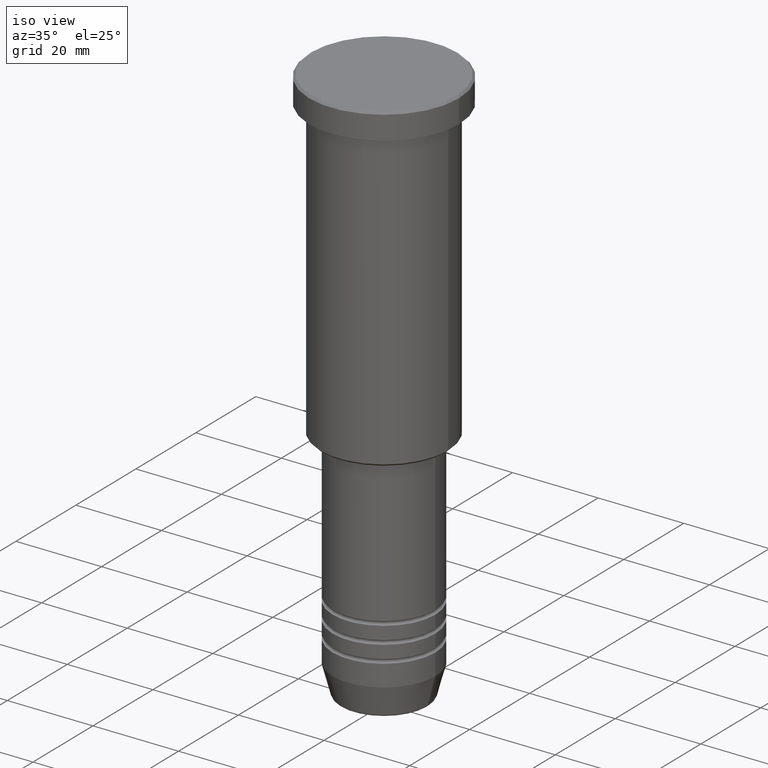
[diagram: clean part render]
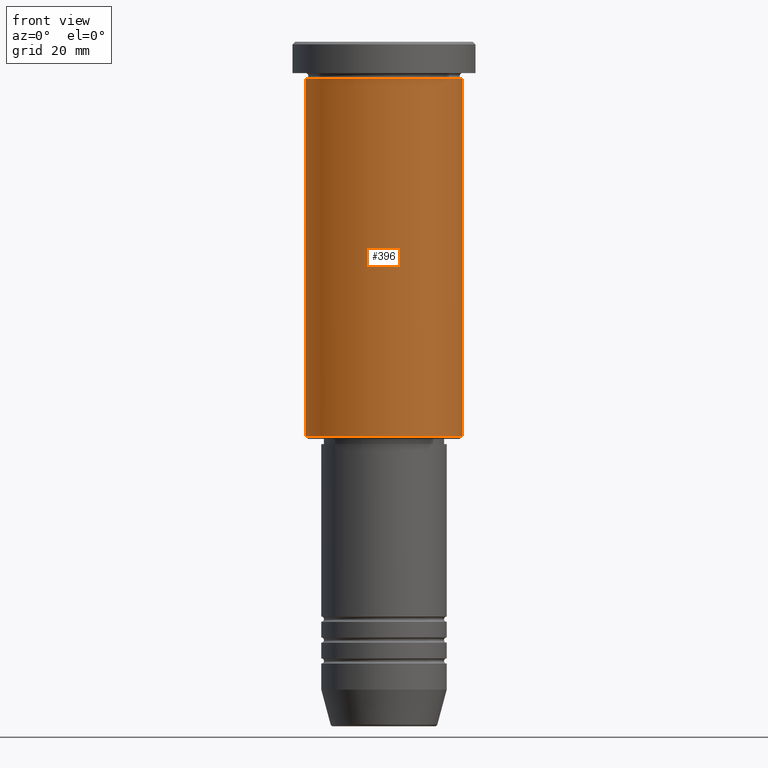
[diagram: tour spotlight — one face highlighted and labeled with its STEP entity id]
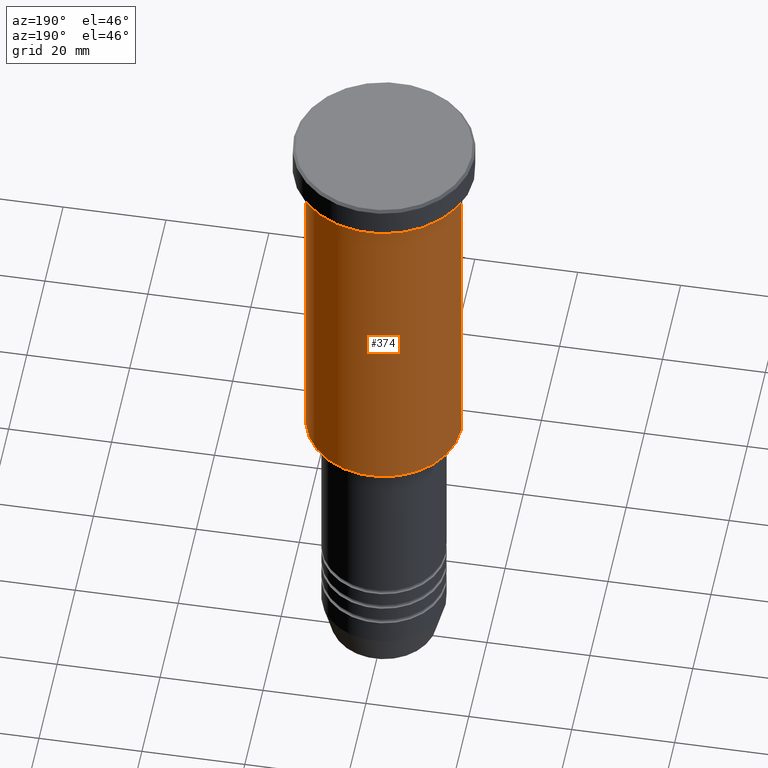
[diagram: tour spotlight — one face highlighted and labeled with its STEP entity id]
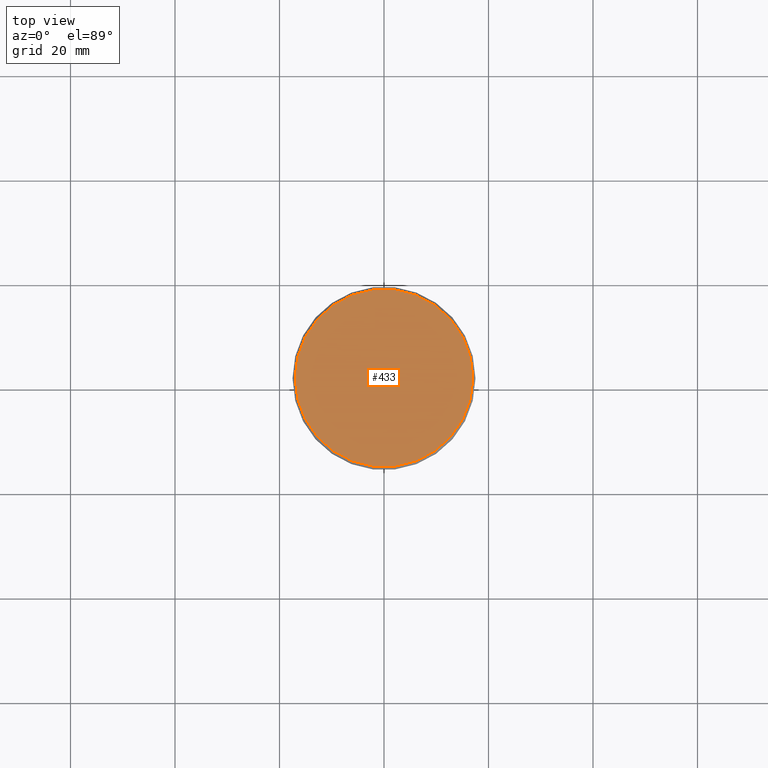
[diagram: tour spotlight — one face highlighted and labeled with its STEP entity id]
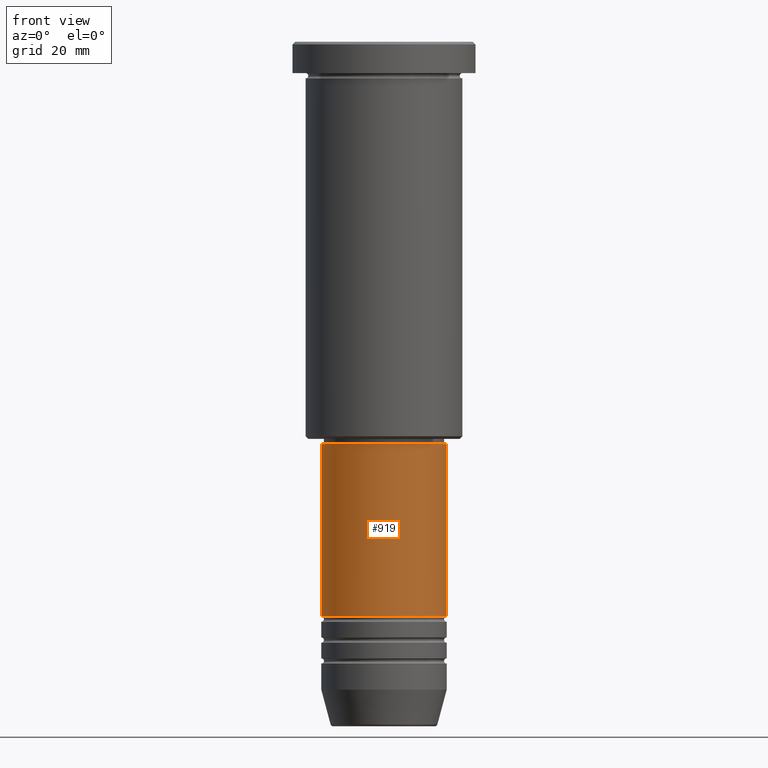
[diagram: tour spotlight — one face highlighted and labeled with its STEP entity id]
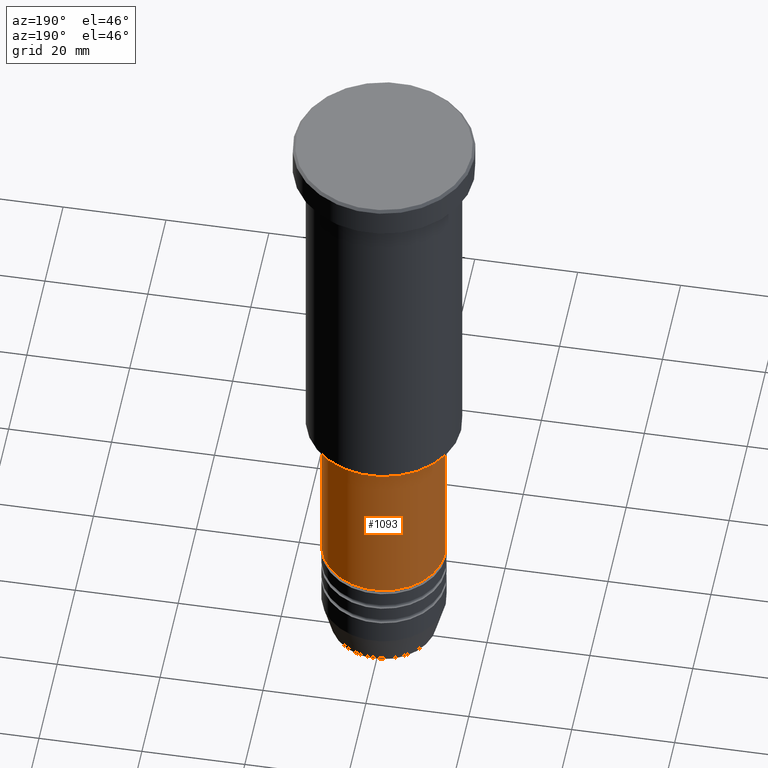
[diagram: tour spotlight — one face highlighted and labeled with its STEP entity id]
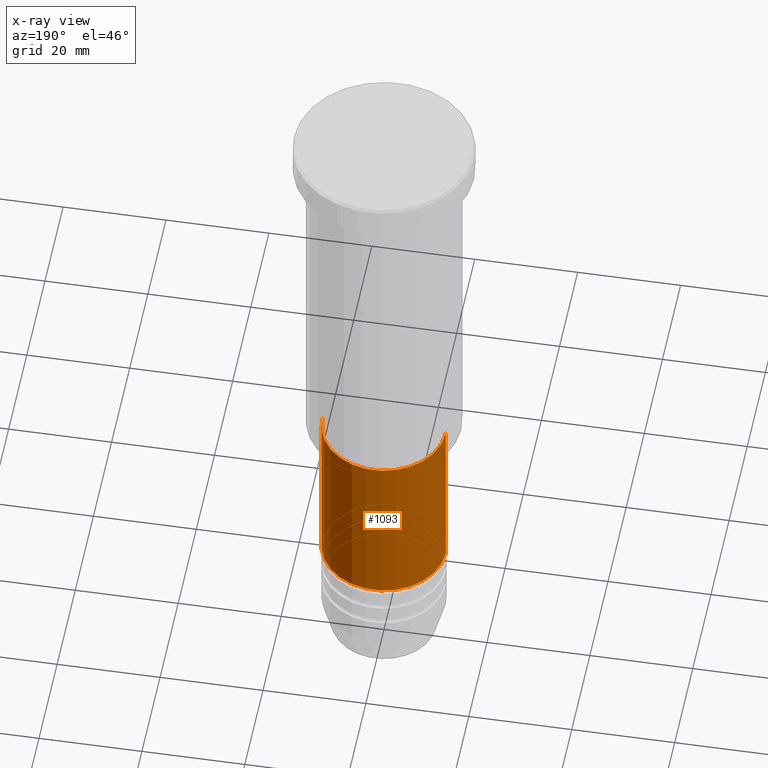
[diagram: x-ray of the same camera — body ghosted, this tour face saturated]
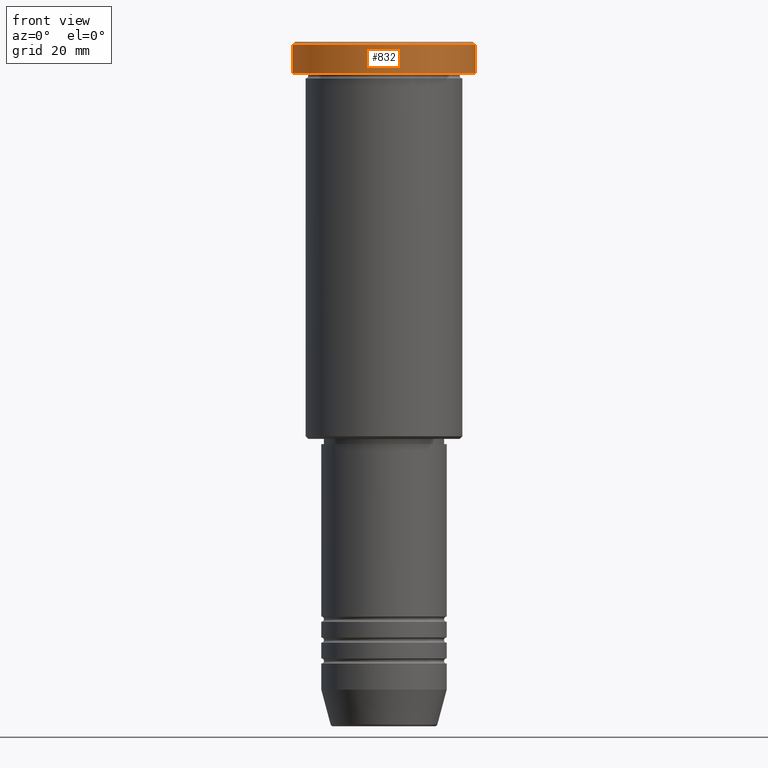
[diagram: tour spotlight — one face highlighted and labeled with its STEP entity id]
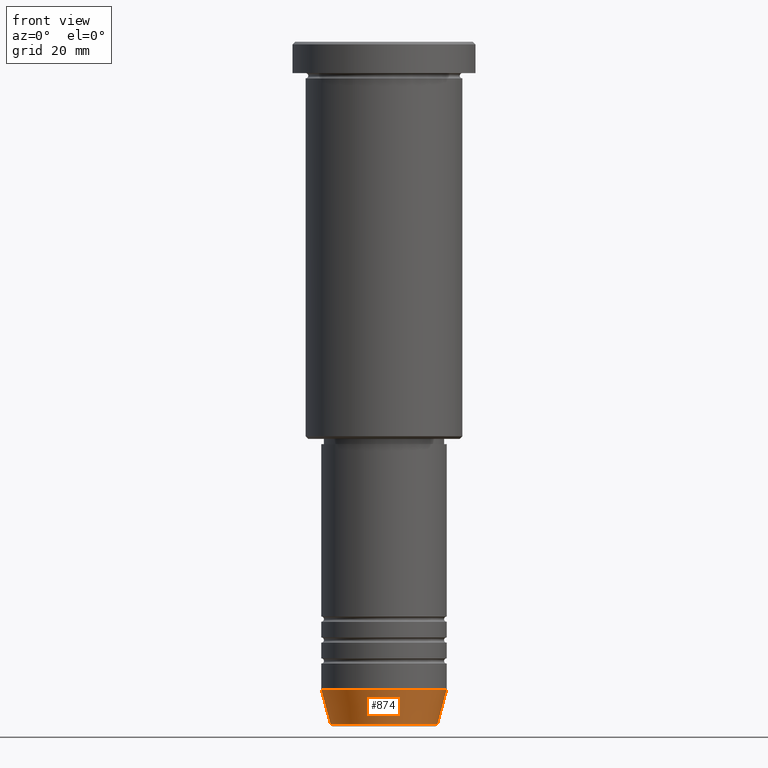
[diagram: tour spotlight — one face highlighted and labeled with its STEP entity id]
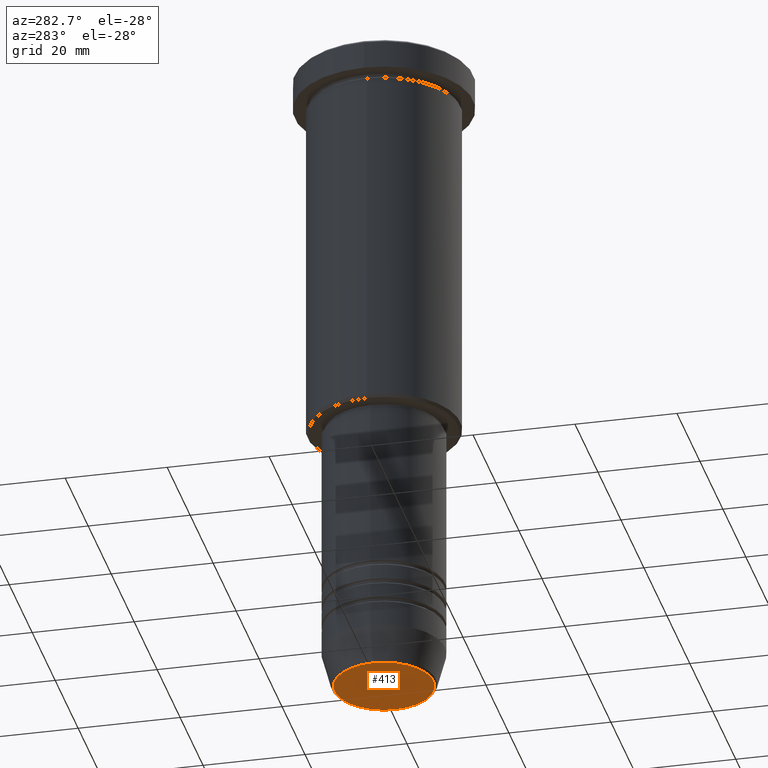
[diagram: tour spotlight — one face highlighted and labeled with its STEP entity id]
A machine part: a face-by-face anatomy tour. The part has 43 B-rep faces; the first image is the clean iso view, then the 8 largest visible faces are spotlighted one at a time (largest first), each with its STEP entity span.

Face 1 — front view, entity #396. In plain terms, the highlighted cylindrical surface (partial cylindrical patch) has radius 15 mm, axis along (-0, -0, 1).
Definition (entity closure, byte-faithful):
#12 = CIRCLE ( 'NONE', #695, 15.00000000000000000 ) ;
#19 = CARTESIAN_POINT ( 'NONE',  ( -15.00000000000000000, 1.836970198721029589E-15, 0.000000000000000000 ) ) ;
#22 = ORIENTED_EDGE ( 'NONE', *, *, #215, .F. ) ;
#30 = LINE ( 'NONE', #63, #548 ) ;
#40 = DIRECTION ( 'NONE',  ( -0.000000000000000000, -0.000000000000000000, 1.000000000000000000 ) ) ;
#63 = CARTESIAN_POINT ( 'NONE',  ( 15.00000000000000000, 0.000000000000000000, 0.000000000000000000 ) ) ;
#80 = FACE_OUTER_BOUND ( 'NONE', #312, .T. ) ;
#109 = LINE ( 'NONE', #19, #1129 ) ;
#174 = VERTEX_POINT ( 'NONE', #352 ) ;
#200 = VERTEX_POINT ( 'NONE', #1108 ) ;
#215 = EDGE_CURVE ( 'NONE', #200, #174, #109, .T. ) ;
#271 = CIRCLE ( 'NONE', #572, 15.00000000000000000 ) ;
#298 = DIRECTION ( 'NONE',  ( 1.000000000000000000, 0.000000000000000000, 0.000000000000000000 ) ) ;
#312 = EDGE_LOOP ( 'NONE', ( #22, #815, #1066, #1137 ) ) ;
#352 = CARTESIAN_POINT ( 'NONE',  ( -15.00000000000000000, 1.836970198721029589E-15, -6.999999999999995559 ) ) ;
#362 = VERTEX_POINT ( 'NONE', #558 ) ;
#375 = CYLINDRICAL_SURFACE ( 'NONE', #642, 15.00000000000000000 ) ;
#396 = ADVANCED_FACE ( 'NONE', ( #80 ), #375, .T. ) ;
#437 = CARTESIAN_POINT ( 'NONE',  ( 0.000000000000000000, 0.000000000000000000, -6.999999999999995559 ) ) ;
#439 = DIRECTION ( 'NONE',  ( -0.000000000000000000, -0.000000000000000000, 1.000000000000000000 ) ) ;
#480 = DIRECTION ( 'NONE',  ( -0.000000000000000000, -0.000000000000000000, 1.000000000000000000 ) ) ;
#505 = CARTESIAN_POINT ( 'NONE',  ( 0.000000000000000000, 0.000000000000000000, -75.49999999999998579 ) ) ;
#548 = VECTOR ( 'NONE', #439, 1000.000000000000000 ) ;
#558 = CARTESIAN_POINT ( 'NONE',  ( 15.00000000000000000, 0.000000000000000000, -6.999999999999995559 ) ) ;
#572 = AXIS2_PLACEMENT_3D ( 'NONE', #505, #40, #1035 ) ;
#642 = AXIS2_PLACEMENT_3D ( 'NONE', #1029, #747, #298 ) ;
#695 = AXIS2_PLACEMENT_3D ( 'NONE', #437, #1152, #708 ) ;
#705 = EDGE_CURVE ( 'NONE', #174, #362, #12, .T. ) ;
#708 = DIRECTION ( 'NONE',  ( 1.000000000000000000, 0.000000000000000000, 0.000000000000000000 ) ) ;
#747 = DIRECTION ( 'NONE',  ( -0.000000000000000000, -0.000000000000000000, 1.000000000000000000 ) ) ;
#815 = ORIENTED_EDGE ( 'NONE', *, *, #936, .T. ) ;
#878 = VERTEX_POINT ( 'NONE', #905 ) ;
#905 = CARTESIAN_POINT ( 'NONE',  ( 15.00000000000000000, 0.000000000000000000, -75.49999999999998579 ) ) ;
#936 = EDGE_CURVE ( 'NONE', #200, #878, #271, .T. ) ;
#1029 = CARTESIAN_POINT ( 'NONE',  ( 0.000000000000000000, 0.000000000000000000, 0.000000000000000000 ) ) ;
#1035 = DIRECTION ( 'NONE',  ( -1.000000000000000000, 0.000000000000000000, 0.000000000000000000 ) ) ;
#1066 = ORIENTED_EDGE ( 'NONE', *, *, #1110, .T. ) ;
#1108 = CARTESIAN_POINT ( 'NONE',  ( -15.00000000000000000, 1.836970198721029589E-15, -75.49999999999998579 ) ) ;
#1110 = EDGE_CURVE ( 'NONE', #878, #362, #30, .T. ) ;
#1129 = VECTOR ( 'NONE', #480, 1000.000000000000000 ) ;
#1137 = ORIENTED_EDGE ( 'NONE', *, *, #705, .F. ) ;
#1152 = DIRECTION ( 'NONE',  ( -0.000000000000000000, -0.000000000000000000, 1.000000000000000000 ) ) ;

Face 2 — auxiliary view, entity #374. In plain terms, the highlighted cylindrical surface (partial cylindrical patch) has radius 15 mm, axis along (-0, -0, 1).
Definition (entity closure, byte-faithful):
#19 = CARTESIAN_POINT ( 'NONE',  ( -15.00000000000000000, 1.836970198721029589E-15, 0.000000000000000000 ) ) ;
#30 = LINE ( 'NONE', #63, #548 ) ;
#63 = CARTESIAN_POINT ( 'NONE',  ( 15.00000000000000000, 0.000000000000000000, 0.000000000000000000 ) ) ;
#109 = LINE ( 'NONE', #19, #1129 ) ;
#144 = ORIENTED_EDGE ( 'NONE', *, *, #689, .T. ) ;
#174 = VERTEX_POINT ( 'NONE', #352 ) ;
#200 = VERTEX_POINT ( 'NONE', #1108 ) ;
#215 = EDGE_CURVE ( 'NONE', #200, #174, #109, .T. ) ;
#255 = DIRECTION ( 'NONE',  ( 1.000000000000000000, 0.000000000000000000, 0.000000000000000000 ) ) ;
#352 = CARTESIAN_POINT ( 'NONE',  ( -15.00000000000000000, 1.836970198721029589E-15, -6.999999999999995559 ) ) ;
#362 = VERTEX_POINT ( 'NONE', #558 ) ;
#366 = ORIENTED_EDGE ( 'NONE', *, *, #215, .T. ) ;
#374 = ADVANCED_FACE ( 'NONE', ( #719 ), #552, .T. ) ;
#426 = DIRECTION ( 'NONE',  ( -0.000000000000000000, -0.000000000000000000, 1.000000000000000000 ) ) ;
#432 = DIRECTION ( 'NONE',  ( -1.000000000000000000, 0.000000000000000000, 0.000000000000000000 ) ) ;
#439 = DIRECTION ( 'NONE',  ( -0.000000000000000000, -0.000000000000000000, 1.000000000000000000 ) ) ;
#480 = DIRECTION ( 'NONE',  ( -0.000000000000000000, -0.000000000000000000, 1.000000000000000000 ) ) ;
#495 = CIRCLE ( 'NONE', #930, 15.00000000000000000 ) ;
#530 = DIRECTION ( 'NONE',  ( -0.000000000000000000, -0.000000000000000000, 1.000000000000000000 ) ) ;
#548 = VECTOR ( 'NONE', #439, 1000.000000000000000 ) ;
#552 = CYLINDRICAL_SURFACE ( 'NONE', #767, 15.00000000000000000 ) ;
#558 = CARTESIAN_POINT ( 'NONE',  ( 15.00000000000000000, 0.000000000000000000, -6.999999999999995559 ) ) ;
#563 = DIRECTION ( 'NONE',  ( -0.000000000000000000, -0.000000000000000000, 1.000000000000000000 ) ) ;
#602 = CIRCLE ( 'NONE', #737, 15.00000000000000000 ) ;
#636 = CARTESIAN_POINT ( 'NONE',  ( 0.000000000000000000, 0.000000000000000000, 0.000000000000000000 ) ) ;
#689 = EDGE_CURVE ( 'NONE', #878, #200, #495, .T. ) ;
#709 = ORIENTED_EDGE ( 'NONE', *, *, #1110, .F. ) ;
#719 = FACE_OUTER_BOUND ( 'NONE', #828, .T. ) ;
#737 = AXIS2_PLACEMENT_3D ( 'NONE', #1100, #563, #887 ) ;
#767 = AXIS2_PLACEMENT_3D ( 'NONE', #636, #530, #255 ) ;
#803 = CARTESIAN_POINT ( 'NONE',  ( 0.000000000000000000, 0.000000000000000000, -75.49999999999998579 ) ) ;
#808 = EDGE_CURVE ( 'NONE', #362, #174, #602, .T. ) ;
#828 = EDGE_LOOP ( 'NONE', ( #144, #366, #1064, #709 ) ) ;
#878 = VERTEX_POINT ( 'NONE', #905 ) ;
#887 = DIRECTION ( 'NONE',  ( 1.000000000000000000, 0.000000000000000000, 0.000000000000000000 ) ) ;
#905 = CARTESIAN_POINT ( 'NONE',  ( 15.00000000000000000, 0.000000000000000000, -75.49999999999998579 ) ) ;
#930 = AXIS2_PLACEMENT_3D ( 'NONE', #803, #426, #432 ) ;
#1064 = ORIENTED_EDGE ( 'NONE', *, *, #808, .F. ) ;
#1100 = CARTESIAN_POINT ( 'NONE',  ( 0.000000000000000000, 0.000000000000000000, -6.999999999999995559 ) ) ;
#1108 = CARTESIAN_POINT ( 'NONE',  ( -15.00000000000000000, 1.836970198721029589E-15, -75.49999999999998579 ) ) ;
#1110 = EDGE_CURVE ( 'NONE', #878, #362, #30, .T. ) ;
#1129 = VECTOR ( 'NONE', #480, 1000.000000000000000 ) ;

Face 3 — top view, entity #433. In plain terms, the highlighted planar face has unit normal (0, -0, 1).
Definition (entity closure, byte-faithful):
#45 = AXIS2_PLACEMENT_3D ( 'NONE', #394, #589, #302 ) ;
#68 = VERTEX_POINT ( 'NONE', #560 ) ;
#74 = CARTESIAN_POINT ( 'NONE',  ( 0.000000000000000000, 0.000000000000000000, 0.000000000000000000 ) ) ;
#100 = PLANE ( 'NONE',  #45 ) ;
#110 = CIRCLE ( 'NONE', #584, 17.00000000000001421 ) ;
#201 = FACE_OUTER_BOUND ( 'NONE', #349, .T. ) ;
#214 = DIRECTION ( 'NONE',  ( 1.000000000000000000, 0.000000000000000000, 0.000000000000000000 ) ) ;
#240 = DIRECTION ( 'NONE',  ( 1.000000000000000000, 0.000000000000000000, 0.000000000000000000 ) ) ;
#302 = DIRECTION ( 'NONE',  ( 1.000000000000000000, 0.000000000000000000, 0.000000000000000000 ) ) ;
#327 = DIRECTION ( 'NONE',  ( -0.000000000000000000, -0.000000000000000000, 1.000000000000000000 ) ) ;
#349 = EDGE_LOOP ( 'NONE', ( #1097, #608 ) ) ;
#367 = DIRECTION ( 'NONE',  ( -0.000000000000000000, -0.000000000000000000, 1.000000000000000000 ) ) ;
#394 = CARTESIAN_POINT ( 'NONE',  ( 0.000000000000000000, 0.000000000000000000, 0.000000000000000000 ) ) ;
#425 = EDGE_CURVE ( 'NONE', #850, #68, #110, .T. ) ;
#433 = ADVANCED_FACE ( 'NONE', ( #201 ), #100, .T. ) ;
#452 = CARTESIAN_POINT ( 'NONE',  ( 17.00000000000001421, 2.112515728529185250E-15, 0.000000000000000000 ) ) ;
#560 = CARTESIAN_POINT ( 'NONE',  ( -17.00000000000001421, 0.000000000000000000, 0.000000000000000000 ) ) ;
#575 = CARTESIAN_POINT ( 'NONE',  ( 0.000000000000000000, 0.000000000000000000, 0.000000000000000000 ) ) ;
#584 = AXIS2_PLACEMENT_3D ( 'NONE', #575, #367, #214 ) ;
#589 = DIRECTION ( 'NONE',  ( 0.000000000000000000, -0.000000000000000000, 1.000000000000000000 ) ) ;
#596 = EDGE_CURVE ( 'NONE', #68, #850, #1022, .T. ) ;
#608 = ORIENTED_EDGE ( 'NONE', *, *, #425, .T. ) ;
#850 = VERTEX_POINT ( 'NONE', #452 ) ;
#914 = AXIS2_PLACEMENT_3D ( 'NONE', #74, #327, #240 ) ;
#1022 = CIRCLE ( 'NONE', #914, 17.00000000000001421 ) ;
#1097 = ORIENTED_EDGE ( 'NONE', *, *, #596, .T. ) ;

Face 4 — front view, entity #919. In plain terms, the highlighted cylindrical surface (partial cylindrical patch) has radius 12 mm, axis along (-0, -0, 1).
Definition (entity closure, byte-faithful):
#42 = CARTESIAN_POINT ( 'NONE',  ( 12.00000000000000000, 0.000000000000000000, -76.99999999999998579 ) ) ;
#69 = AXIS2_PLACEMENT_3D ( 'NONE', #750, #1015, #470 ) ;
#112 = VECTOR ( 'NONE', #392, 1000.000000000000000 ) ;
#134 = DIRECTION ( 'NONE',  ( 1.000000000000000000, 0.000000000000000000, 0.000000000000000000 ) ) ;
#166 = ORIENTED_EDGE ( 'NONE', *, *, #843, .F. ) ;
#168 = VECTOR ( 'NONE', #370, 1000.000000000000000 ) ;
#179 = ORIENTED_EDGE ( 'NONE', *, *, #762, .F. ) ;
#184 = FACE_OUTER_BOUND ( 'NONE', #635, .T. ) ;
#203 = LINE ( 'NONE', #581, #112 ) ;
#249 = VERTEX_POINT ( 'NONE', #938 ) ;
#259 = ORIENTED_EDGE ( 'NONE', *, *, #353, .T. ) ;
#287 = VERTEX_POINT ( 'NONE', #1119 ) ;
#303 = AXIS2_PLACEMENT_3D ( 'NONE', #949, #701, #134 ) ;
#306 = CARTESIAN_POINT ( 'NONE',  ( 12.00000000000000000, 0.000000000000000000, -109.9999999999998863 ) ) ;
#324 = ORIENTED_EDGE ( 'NONE', *, *, #1060, .T. ) ;
#353 = EDGE_CURVE ( 'NONE', #249, #982, #1049, .T. ) ;
#370 = DIRECTION ( 'NONE',  ( -0.000000000000000000, -0.000000000000000000, 1.000000000000000000 ) ) ;
#392 = DIRECTION ( 'NONE',  ( -0.000000000000000000, -0.000000000000000000, 1.000000000000000000 ) ) ;
#400 = CIRCLE ( 'NONE', #768, 12.00000000000000000 ) ;
#470 = DIRECTION ( 'NONE',  ( 1.000000000000000000, 0.000000000000000000, 0.000000000000000000 ) ) ;
#507 = CARTESIAN_POINT ( 'NONE',  ( 0.000000000000000000, 0.000000000000000000, -76.99999999999998579 ) ) ;
#581 = CARTESIAN_POINT ( 'NONE',  ( 12.00000000000000000, 0.000000000000000000, 0.000000000000000000 ) ) ;
#620 = DIRECTION ( 'NONE',  ( 1.000000000000000000, 0.000000000000000000, 0.000000000000000000 ) ) ;
#635 = EDGE_LOOP ( 'NONE', ( #166, #259, #324, #179 ) ) ;
#661 = CYLINDRICAL_SURFACE ( 'NONE', #69, 12.00000000000000000 ) ;
#701 = DIRECTION ( 'NONE',  ( -0.000000000000000000, -0.000000000000000000, 1.000000000000000000 ) ) ;
#750 = CARTESIAN_POINT ( 'NONE',  ( 0.000000000000000000, 0.000000000000000000, 0.000000000000000000 ) ) ;
#762 = EDGE_CURVE ( 'NONE', #287, #764, #400, .T. ) ;
#764 = VERTEX_POINT ( 'NONE', #42 ) ;
#768 = AXIS2_PLACEMENT_3D ( 'NONE', #507, #865, #620 ) ;
#843 = EDGE_CURVE ( 'NONE', #249, #287, #1179, .T. ) ;
#865 = DIRECTION ( 'NONE',  ( -0.000000000000000000, -0.000000000000000000, 1.000000000000000000 ) ) ;
#919 = ADVANCED_FACE ( 'NONE', ( #184 ), #661, .T. ) ;
#938 = CARTESIAN_POINT ( 'NONE',  ( -12.00000000000000000, 1.469576158976823947E-15, -109.9999999999998863 ) ) ;
#949 = CARTESIAN_POINT ( 'NONE',  ( 0.000000000000000000, 0.000000000000000000, -109.9999999999998863 ) ) ;
#982 = VERTEX_POINT ( 'NONE', #306 ) ;
#1008 = CARTESIAN_POINT ( 'NONE',  ( -12.00000000000000000, 1.469576158976823947E-15, 0.000000000000000000 ) ) ;
#1015 = DIRECTION ( 'NONE',  ( -0.000000000000000000, -0.000000000000000000, 1.000000000000000000 ) ) ;
#1049 = CIRCLE ( 'NONE', #303, 12.00000000000000000 ) ;
#1060 = EDGE_CURVE ( 'NONE', #982, #764, #203, .T. ) ;
#1119 = CARTESIAN_POINT ( 'NONE',  ( -12.00000000000000000, 1.469576158976823947E-15, -76.99999999999998579 ) ) ;
#1179 = LINE ( 'NONE', #1008, #168 ) ;

Face 5 — auxiliary view, entity #1093. An x-ray twin of the same camera follows (body ghosted, this face saturated) — the face is partly hidden behind the body. In plain terms, the highlighted cylindrical surface (partial cylindrical patch) has radius 12 mm, axis along (-0, -0, 1).
Definition (entity closure, byte-faithful):
#15 = AXIS2_PLACEMENT_3D ( 'NONE', #1002, #176, #980 ) ;
#42 = CARTESIAN_POINT ( 'NONE',  ( 12.00000000000000000, 0.000000000000000000, -76.99999999999998579 ) ) ;
#87 = CARTESIAN_POINT ( 'NONE',  ( 0.000000000000000000, 0.000000000000000000, -76.99999999999998579 ) ) ;
#112 = VECTOR ( 'NONE', #392, 1000.000000000000000 ) ;
#162 = EDGE_CURVE ( 'NONE', #764, #287, #493, .T. ) ;
#168 = VECTOR ( 'NONE', #370, 1000.000000000000000 ) ;
#176 = DIRECTION ( 'NONE',  ( -0.000000000000000000, -0.000000000000000000, 1.000000000000000000 ) ) ;
#203 = LINE ( 'NONE', #581, #112 ) ;
#249 = VERTEX_POINT ( 'NONE', #938 ) ;
#254 = ORIENTED_EDGE ( 'NONE', *, *, #1060, .F. ) ;
#257 = DIRECTION ( 'NONE',  ( -0.000000000000000000, -0.000000000000000000, 1.000000000000000000 ) ) ;
#287 = VERTEX_POINT ( 'NONE', #1119 ) ;
#306 = CARTESIAN_POINT ( 'NONE',  ( 12.00000000000000000, 0.000000000000000000, -109.9999999999998863 ) ) ;
#370 = DIRECTION ( 'NONE',  ( -0.000000000000000000, -0.000000000000000000, 1.000000000000000000 ) ) ;
#392 = DIRECTION ( 'NONE',  ( -0.000000000000000000, -0.000000000000000000, 1.000000000000000000 ) ) ;
#477 = CARTESIAN_POINT ( 'NONE',  ( 0.000000000000000000, 0.000000000000000000, -109.9999999999998863 ) ) ;
#478 = EDGE_CURVE ( 'NONE', #982, #249, #666, .T. ) ;
#493 = CIRCLE ( 'NONE', #836, 12.00000000000000000 ) ;
#539 = FACE_OUTER_BOUND ( 'NONE', #918, .T. ) ;
#581 = CARTESIAN_POINT ( 'NONE',  ( 12.00000000000000000, 0.000000000000000000, 0.000000000000000000 ) ) ;
#610 = ORIENTED_EDGE ( 'NONE', *, *, #162, .F. ) ;
#631 = DIRECTION ( 'NONE',  ( 1.000000000000000000, 0.000000000000000000, 0.000000000000000000 ) ) ;
#666 = CIRCLE ( 'NONE', #942, 12.00000000000000000 ) ;
#696 = CYLINDRICAL_SURFACE ( 'NONE', #15, 12.00000000000000000 ) ;
#738 = ORIENTED_EDGE ( 'NONE', *, *, #478, .T. ) ;
#764 = VERTEX_POINT ( 'NONE', #42 ) ;
#835 = DIRECTION ( 'NONE',  ( -0.000000000000000000, -0.000000000000000000, 1.000000000000000000 ) ) ;
#836 = AXIS2_PLACEMENT_3D ( 'NONE', #87, #257, #631 ) ;
#843 = EDGE_CURVE ( 'NONE', #249, #287, #1179, .T. ) ;
#898 = ORIENTED_EDGE ( 'NONE', *, *, #843, .T. ) ;
#918 = EDGE_LOOP ( 'NONE', ( #738, #898, #610, #254 ) ) ;
#938 = CARTESIAN_POINT ( 'NONE',  ( -12.00000000000000000, 1.469576158976823947E-15, -109.9999999999998863 ) ) ;
#942 = AXIS2_PLACEMENT_3D ( 'NONE', #477, #835, #1125 ) ;
#980 = DIRECTION ( 'NONE',  ( 1.000000000000000000, 0.000000000000000000, 0.000000000000000000 ) ) ;
#982 = VERTEX_POINT ( 'NONE', #306 ) ;
#1002 = CARTESIAN_POINT ( 'NONE',  ( 0.000000000000000000, 0.000000000000000000, 0.000000000000000000 ) ) ;
#1008 = CARTESIAN_POINT ( 'NONE',  ( -12.00000000000000000, 1.469576158976823947E-15, 0.000000000000000000 ) ) ;
#1060 = EDGE_CURVE ( 'NONE', #982, #764, #203, .T. ) ;
#1093 = ADVANCED_FACE ( 'NONE', ( #539 ), #696, .T. ) ;
#1119 = CARTESIAN_POINT ( 'NONE',  ( -12.00000000000000000, 1.469576158976823947E-15, -76.99999999999998579 ) ) ;
#1125 = DIRECTION ( 'NONE',  ( 1.000000000000000000, 0.000000000000000000, 0.000000000000000000 ) ) ;
#1179 = LINE ( 'NONE', #1008, #168 ) ;

Face 6 — front view, entity #832. In plain terms, the highlighted cylindrical surface (partial cylindrical patch) has radius 17.5 mm, axis along (-0, -0, 1).
Definition (entity closure, byte-faithful):
#76 = FACE_OUTER_BOUND ( 'NONE', #516, .T. ) ;
#115 = DIRECTION ( 'NONE',  ( -0.000000000000000000, -0.000000000000000000, 1.000000000000000000 ) ) ;
#121 = EDGE_CURVE ( 'NONE', #528, #1146, #1034, .T. ) ;
#145 = AXIS2_PLACEMENT_3D ( 'NONE', #931, #115, #395 ) ;
#196 = CARTESIAN_POINT ( 'NONE',  ( 17.50000000000000000, 0.000000000000000000, -5.999999999999995559 ) ) ;
#217 = CARTESIAN_POINT ( 'NONE',  ( -17.50000000000000000, 2.143131898507868248E-15, -5.999999999999995559 ) ) ;
#220 = EDGE_CURVE ( 'NONE', #904, #509, #665, .T. ) ;
#345 = DIRECTION ( 'NONE',  ( 0.000000000000000000, 0.000000000000000000, -1.000000000000000000 ) ) ;
#395 = DIRECTION ( 'NONE',  ( 1.000000000000000000, 0.000000000000000000, 0.000000000000000000 ) ) ;
#411 = CARTESIAN_POINT ( 'NONE',  ( 17.50000000000000000, 0.000000000000000000, -0.5000000000000003331 ) ) ;
#464 = DIRECTION ( 'NONE',  ( -0.000000000000000000, -0.000000000000000000, 1.000000000000000000 ) ) ;
#486 = LINE ( 'NONE', #587, #1038 ) ;
#509 = VERTEX_POINT ( 'NONE', #196 ) ;
#516 = EDGE_LOOP ( 'NONE', ( #876, #958, #542, #1095 ) ) ;
#528 = VERTEX_POINT ( 'NONE', #411 ) ;
#542 = ORIENTED_EDGE ( 'NONE', *, *, #848, .T. ) ;
#550 = DIRECTION ( 'NONE',  ( 1.000000000000000000, 0.000000000000000000, 0.000000000000000000 ) ) ;
#571 = CARTESIAN_POINT ( 'NONE',  ( 17.50000000000000000, 0.000000000000000000, 0.000000000000000000 ) ) ;
#587 = CARTESIAN_POINT ( 'NONE',  ( -17.50000000000000000, 2.143131898507868248E-15, 0.000000000000000000 ) ) ;
#634 = DIRECTION ( 'NONE',  ( -0.000000000000000000, -0.000000000000000000, 1.000000000000000000 ) ) ;
#638 = CARTESIAN_POINT ( 'NONE',  ( 0.000000000000000000, 0.000000000000000000, 0.000000000000000000 ) ) ;
#647 = CARTESIAN_POINT ( 'NONE',  ( 0.000000000000000000, 0.000000000000000000, -0.5000000000000003331 ) ) ;
#665 = CIRCLE ( 'NONE', #145, 17.50000000000000000 ) ;
#728 = DIRECTION ( 'NONE',  ( 1.000000000000000000, 0.000000000000000000, 0.000000000000000000 ) ) ;
#832 = ADVANCED_FACE ( 'NONE', ( #76 ), #1091, .T. ) ;
#842 = DIRECTION ( 'NONE',  ( -0.000000000000000000, -0.000000000000000000, 1.000000000000000000 ) ) ;
#848 = EDGE_CURVE ( 'NONE', #509, #528, #1167, .T. ) ;
#876 = ORIENTED_EDGE ( 'NONE', *, *, #1033, .F. ) ;
#888 = AXIS2_PLACEMENT_3D ( 'NONE', #647, #345, #728 ) ;
#904 = VERTEX_POINT ( 'NONE', #217 ) ;
#931 = CARTESIAN_POINT ( 'NONE',  ( 0.000000000000000000, 0.000000000000000000, -5.999999999999995559 ) ) ;
#958 = ORIENTED_EDGE ( 'NONE', *, *, #220, .T. ) ;
#971 = VECTOR ( 'NONE', #634, 1000.000000000000000 ) ;
#1019 = CARTESIAN_POINT ( 'NONE',  ( -17.50000000000000000, 2.143131898507868248E-15, -0.5000000000000003331 ) ) ;
#1033 = EDGE_CURVE ( 'NONE', #904, #1146, #486, .T. ) ;
#1034 = CIRCLE ( 'NONE', #888, 17.50000000000000000 ) ;
#1038 = VECTOR ( 'NONE', #842, 1000.000000000000000 ) ;
#1091 = CYLINDRICAL_SURFACE ( 'NONE', #1104, 17.50000000000000000 ) ;
#1095 = ORIENTED_EDGE ( 'NONE', *, *, #121, .T. ) ;
#1104 = AXIS2_PLACEMENT_3D ( 'NONE', #638, #464, #550 ) ;
#1146 = VERTEX_POINT ( 'NONE', #1019 ) ;
#1167 = LINE ( 'NONE', #571, #971 ) ;

Face 7 — front view, entity #874. In plain terms, the highlighted conical surface has half-angle 15 deg.
Definition (entity closure, byte-faithful):
#43 = CARTESIAN_POINT ( 'NONE',  ( 12.00000000000000000, 0.000000000000000000, -124.0000000000000000 ) ) ;
#53 = ORIENTED_EDGE ( 'NONE', *, *, #733, .F. ) ;
#130 = LINE ( 'NONE', #409, #361 ) ;
#147 = DIRECTION ( 'NONE',  ( -0.000000000000000000, -0.000000000000000000, 1.000000000000000000 ) ) ;
#171 = CARTESIAN_POINT ( 'NONE',  ( 10.22365507213718949, 0.000000000000000000, -130.6294095225512422 ) ) ;
#192 = CIRCLE ( 'NONE', #855, 10.22365507213718949 ) ;
#228 = DIRECTION ( 'NONE',  ( 0.2588190451025213501, 0.000000000000000000, 0.9659258262890680902 ) ) ;
#233 = CARTESIAN_POINT ( 'NONE',  ( 12.00000000000000000, 0.000000000000000000, -124.0000000000000000 ) ) ;
#315 = CARTESIAN_POINT ( 'NONE',  ( -12.00000000000000000, 1.469576158976823947E-15, -124.0000000000000000 ) ) ;
#332 = EDGE_LOOP ( 'NONE', ( #53, #1089, #963, #1070 ) ) ;
#336 = VERTEX_POINT ( 'NONE', #315 ) ;
#342 = EDGE_CURVE ( 'NONE', #976, #574, #1050, .T. ) ;
#361 = VECTOR ( 'NONE', #860, 1000.000000000000000 ) ;
#386 = VECTOR ( 'NONE', #228, 1000.000000000000000 ) ;
#387 = AXIS2_PLACEMENT_3D ( 'NONE', #861, #594, #403 ) ;
#403 = DIRECTION ( 'NONE',  ( 1.000000000000000000, 0.000000000000000000, 0.000000000000000000 ) ) ;
#409 = CARTESIAN_POINT ( 'NONE',  ( -12.00000000000000000, 1.469576158976823947E-15, -124.0000000000000000 ) ) ;
#442 = CIRCLE ( 'NONE', #387, 12.00000000000000000 ) ;
#512 = EDGE_CURVE ( 'NONE', #336, #574, #442, .T. ) ;
#540 = DIRECTION ( 'NONE',  ( -0.000000000000000000, -0.000000000000000000, 1.000000000000000000 ) ) ;
#557 = DIRECTION ( 'NONE',  ( 1.000000000000000000, 0.000000000000000000, 0.000000000000000000 ) ) ;
#574 = VERTEX_POINT ( 'NONE', #43 ) ;
#594 = DIRECTION ( 'NONE',  ( -0.000000000000000000, -0.000000000000000000, 1.000000000000000000 ) ) ;
#619 = CARTESIAN_POINT ( 'NONE',  ( 0.000000000000000000, 0.000000000000000000, -130.6294095225512422 ) ) ;
#633 = EDGE_CURVE ( 'NONE', #1143, #976, #192, .T. ) ;
#683 = CONICAL_SURFACE ( 'NONE', #769, 12.00000000000000000, 0.2617993877991500740 ) ;
#733 = EDGE_CURVE ( 'NONE', #1143, #336, #130, .T. ) ;
#751 = CARTESIAN_POINT ( 'NONE',  ( 0.000000000000000000, 0.000000000000000000, -124.0000000000000000 ) ) ;
#769 = AXIS2_PLACEMENT_3D ( 'NONE', #751, #540, #557 ) ;
#830 = FACE_OUTER_BOUND ( 'NONE', #332, .T. ) ;
#855 = AXIS2_PLACEMENT_3D ( 'NONE', #619, #147, #1145 ) ;
#860 = DIRECTION ( 'NONE',  ( -0.2588190451025213501, 3.169619151431772337E-17, 0.9659258262890680902 ) ) ;
#861 = CARTESIAN_POINT ( 'NONE',  ( 0.000000000000000000, 0.000000000000000000, -124.0000000000000000 ) ) ;
#874 = ADVANCED_FACE ( 'NONE', ( #830 ), #683, .T. ) ;
#963 = ORIENTED_EDGE ( 'NONE', *, *, #342, .T. ) ;
#976 = VERTEX_POINT ( 'NONE', #171 ) ;
#998 = CARTESIAN_POINT ( 'NONE',  ( -10.22365507213718949, 1.360806402472382744E-15, -130.6294095225512422 ) ) ;
#1050 = LINE ( 'NONE', #233, #386 ) ;
#1070 = ORIENTED_EDGE ( 'NONE', *, *, #512, .F. ) ;
#1089 = ORIENTED_EDGE ( 'NONE', *, *, #633, .T. ) ;
#1143 = VERTEX_POINT ( 'NONE', #998 ) ;
#1145 = DIRECTION ( 'NONE',  ( 1.000000000000000000, 0.000000000000000000, 0.000000000000000000 ) ) ;

Face 8 — auxiliary view, entity #413. In plain terms, the highlighted planar face has unit normal (0, -0, 1).
Definition (entity closure, byte-faithful):
#8 = EDGE_CURVE ( 'NONE', #1021, #510, #939, .T. ) ;
#18 = CARTESIAN_POINT ( 'NONE',  ( 9.740692158992654726, 0.000000000000000000, -131.0000000000000000 ) ) ;
#31 = AXIS2_PLACEMENT_3D ( 'NONE', #178, #603, #393 ) ;
#62 = ORIENTED_EDGE ( 'NONE', *, *, #1173, .T. ) ;
#169 = CIRCLE ( 'NONE', #31, 9.740692158992654726 ) ;
#178 = CARTESIAN_POINT ( 'NONE',  ( 0.000000000000000000, 0.000000000000000000, -131.0000000000000000 ) ) ;
#195 = DIRECTION ( 'NONE',  ( 0.000000000000000000, -0.000000000000000000, 1.000000000000000000 ) ) ;
#205 = CARTESIAN_POINT ( 'NONE',  ( 0.000000000000000000, 0.000000000000000000, -131.0000000000000000 ) ) ;
#338 = DIRECTION ( 'NONE',  ( 1.000000000000000000, 0.000000000000000000, 0.000000000000000000 ) ) ;
#393 = DIRECTION ( 'NONE',  ( 1.000000000000000000, 0.000000000000000000, 0.000000000000000000 ) ) ;
#413 = ADVANCED_FACE ( 'NONE', ( #679 ), #915, .F. ) ;
#503 = CARTESIAN_POINT ( 'NONE',  ( -9.740692158992654726, 1.222463696683474604E-15, -131.0000000000000000 ) ) ;
#510 = VERTEX_POINT ( 'NONE', #503 ) ;
#583 = DIRECTION ( 'NONE',  ( 1.000000000000000000, 0.000000000000000000, 0.000000000000000000 ) ) ;
#603 = DIRECTION ( 'NONE',  ( 0.000000000000000000, 0.000000000000000000, -1.000000000000000000 ) ) ;
#679 = FACE_OUTER_BOUND ( 'NONE', #1113, .T. ) ;
#753 = AXIS2_PLACEMENT_3D ( 'NONE', #950, #1047, #338 ) ;
#915 = PLANE ( 'NONE',  #992 ) ;
#939 = CIRCLE ( 'NONE', #753, 9.740692158992654726 ) ;
#950 = CARTESIAN_POINT ( 'NONE',  ( 0.000000000000000000, 0.000000000000000000, -131.0000000000000000 ) ) ;
#975 = ORIENTED_EDGE ( 'NONE', *, *, #8, .T. ) ;
#992 = AXIS2_PLACEMENT_3D ( 'NONE', #205, #195, #583 ) ;
#1021 = VERTEX_POINT ( 'NONE', #18 ) ;
#1047 = DIRECTION ( 'NONE',  ( 0.000000000000000000, 0.000000000000000000, -1.000000000000000000 ) ) ;
#1113 = EDGE_LOOP ( 'NONE', ( #975, #62 ) ) ;
#1173 = EDGE_CURVE ( 'NONE', #510, #1021, #169, .T. ) ;